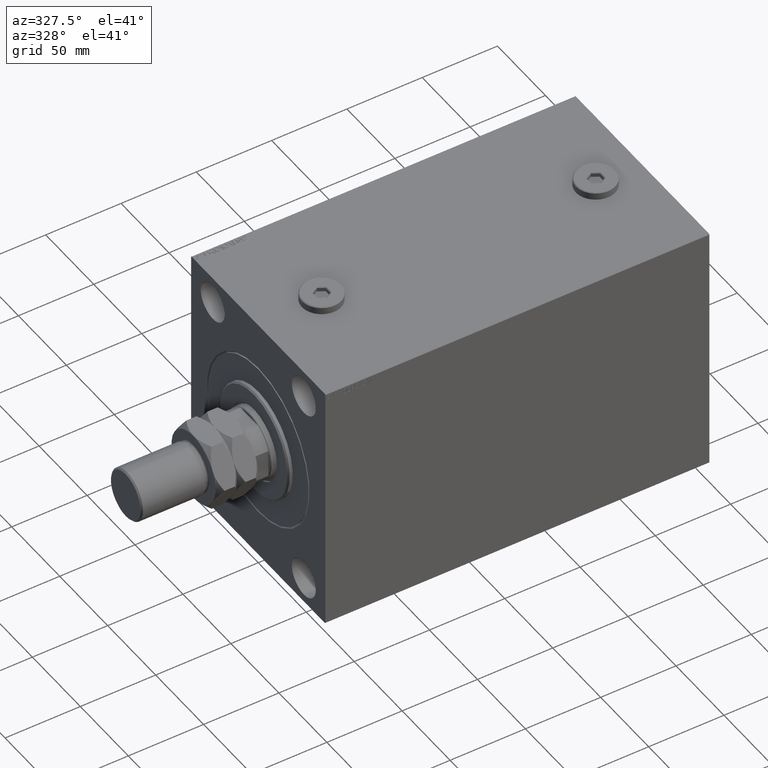
[diagram: clean part render]
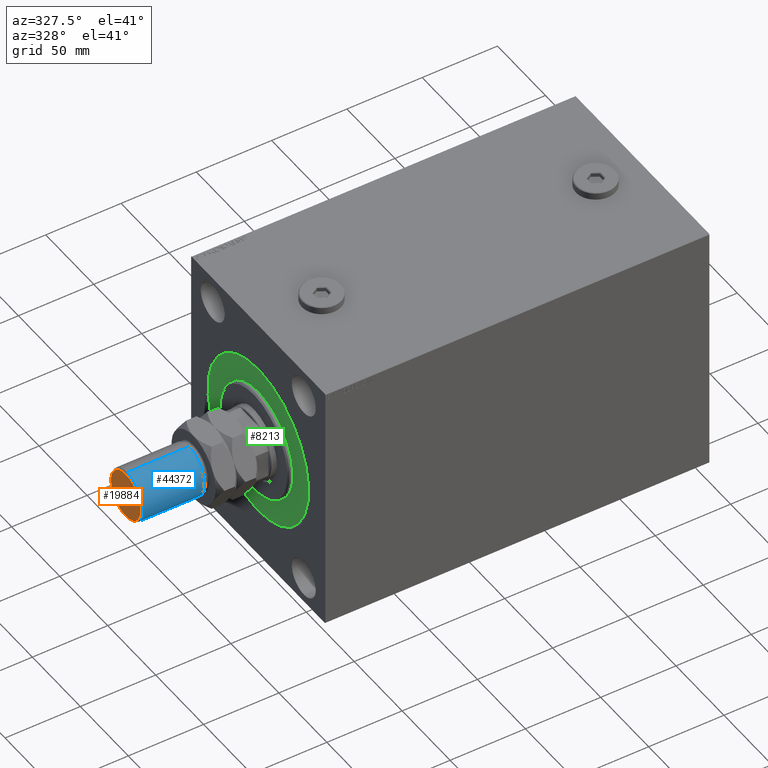
[diagram: same view with three faces highlighted in distinct colors, each labeled with its STEP entity id]
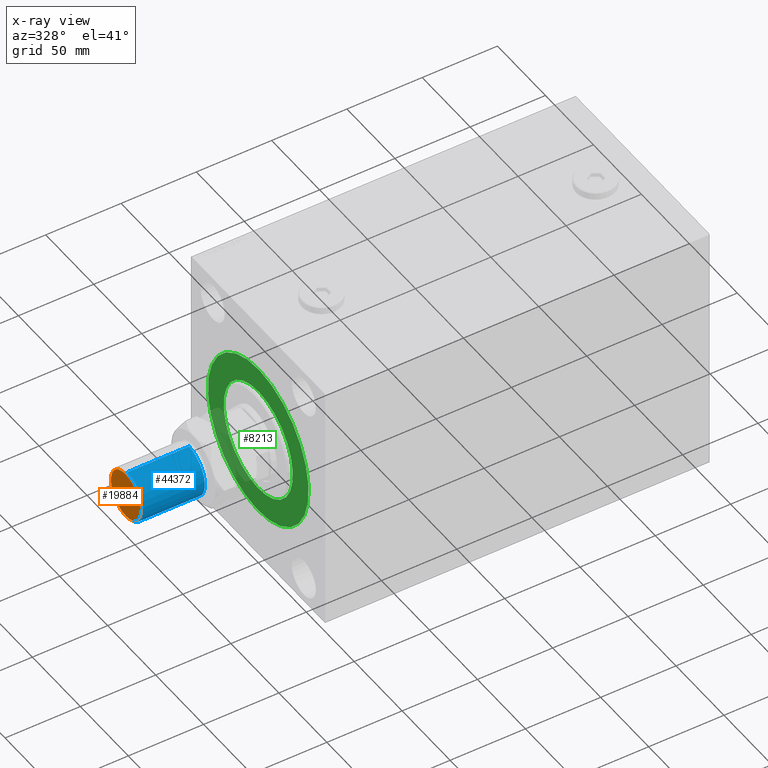
[diagram: x-ray of the same camera — body ghosted, the three highlighted faces saturated]
A machine part, auxiliary view with three faces highlighted in distinct colors.
The next image is the same camera in x-ray (body ghosted, the three faces saturated) — at least one of them is partly hidden behind the body in this view.
Their STEP definitions:

[orange] entity #19884 — the highlighted planar face has unit normal (-1, 0, 0).
#3468 = DIRECTION ( 'NONE',  ( 0.000000000000000000, 0.000000000000000000, 1.000000000000000000 ) ) ;
#3622 = VERTEX_POINT ( 'NONE', #8226 ) ;
#4128 = DIRECTION ( 'NONE',  ( 1.000000000000000000, 0.000000000000000000, 0.000000000000000000 ) ) ;
#4466 = CARTESIAN_POINT ( 'NONE',  ( -15.50000000000001421, 0.000000000000000000, 73.00000000000000000 ) ) ;
#5258 = AXIS2_PLACEMENT_3D ( 'NONE', #46260, #20835, #13702 ) ;
#5776 = ORIENTED_EDGE ( 'NONE', *, *, #31759, .T. ) ;
#6337 = FACE_OUTER_BOUND ( 'NONE', #42198, .T. ) ;
#7741 = CARTESIAN_POINT ( 'NONE',  ( 0.000000000000000000, 0.000000000000000000, 73.00000000000000000 ) ) ;
#8146 = VERTEX_POINT ( 'NONE', #4466 ) ;
#8226 = CARTESIAN_POINT ( 'NONE',  ( 15.50000000000001421, 1.959434878635766315E-15, 73.00000000000000000 ) ) ;
#8407 = CIRCLE ( 'NONE', #21336, 15.50000000000001421 ) ;
#9292 = CIRCLE ( 'NONE', #13095, 15.50000000000001421 ) ;
#13095 = AXIS2_PLACEMENT_3D ( 'NONE', #7741, #3468, #28889 ) ;
#13239 = PLANE ( 'NONE',  #5258 ) ;
#13702 = DIRECTION ( 'NONE',  ( 1.000000000000000000, 0.000000000000000000, -0.000000000000000000 ) ) ;
#19884 = ADVANCED_FACE ( 'NONE', ( #6337 ), #13239, .T. ) ;
#20835 = DIRECTION ( 'NONE',  ( 0.000000000000000000, 0.000000000000000000, 1.000000000000000000 ) ) ;
#21336 = AXIS2_PLACEMENT_3D ( 'NONE', #25973, #40467, #4128 ) ;
#22665 = ORIENTED_EDGE ( 'NONE', *, *, #28804, .T. ) ;
#25973 = CARTESIAN_POINT ( 'NONE',  ( 0.000000000000000000, 0.000000000000000000, 73.00000000000000000 ) ) ;
#28804 = EDGE_CURVE ( 'NONE', #3622, #8146, #8407, .T. ) ;
#28889 = DIRECTION ( 'NONE',  ( 1.000000000000000000, 0.000000000000000000, 0.000000000000000000 ) ) ;
#31759 = EDGE_CURVE ( 'NONE', #8146, #3622, #9292, .T. ) ;
#40467 = DIRECTION ( 'NONE',  ( 0.000000000000000000, 0.000000000000000000, 1.000000000000000000 ) ) ;
#42198 = EDGE_LOOP ( 'NONE', ( #5776, #22665 ) ) ;
#46260 = CARTESIAN_POINT ( 'NONE',  ( 0.000000000000000000, 0.000000000000000000, 73.00000000000000000 ) ) ;

[blue] entity #44372 — the highlighted cylindrical surface (edge-blend (fillet) strip) has radius 16.5 mm, axis along (1, -0, -0).
#1222 = DIRECTION ( 'NONE',  ( -0.000000000000000000, -0.000000000000000000, 1.000000000000000000 ) ) ;
#1884 = AXIS2_PLACEMENT_3D ( 'NONE', #32098, #16908, #46614 ) ;
#2459 = CARTESIAN_POINT ( 'NONE',  ( -16.50000000000000000, 0.000000000000000000, 30.99999999999998579 ) ) ;
#2487 = EDGE_CURVE ( 'NONE', #16702, #9773, #31945, .T. ) ;
#3919 = LINE ( 'NONE', #32899, #8215 ) ;
#4001 = DIRECTION ( 'NONE',  ( 0.000000000000000000, 0.000000000000000000, -1.000000000000000000 ) ) ;
#4834 = EDGE_CURVE ( 'NONE', #30489, #9773, #6968, .T. ) ;
#5643 = EDGE_CURVE ( 'NONE', #30489, #9370, #12975, .T. ) ;
#5955 = CARTESIAN_POINT ( 'NONE',  ( -16.50000000000000000, 0.000000000000000000, 72.00000000000000000 ) ) ;
#6449 = CYLINDRICAL_SURFACE ( 'NONE', #1884, 16.50000000000000000 ) ;
#6968 = LINE ( 'NONE', #43328, #39482 ) ;
#8215 = VECTOR ( 'NONE', #33593, 1000.000000000000000 ) ;
#8262 = CARTESIAN_POINT ( 'NONE',  ( 0.000000000000000000, 0.000000000000000000, 72.00000000000000000 ) ) ;
#9370 = VERTEX_POINT ( 'NONE', #5955 ) ;
#9773 = VERTEX_POINT ( 'NONE', #34784 ) ;
#12524 = ORIENTED_EDGE ( 'NONE', *, *, #4834, .F. ) ;
#12975 = CIRCLE ( 'NONE', #38775, 16.50000000000000000 ) ;
#14913 = CARTESIAN_POINT ( 'NONE',  ( 16.50000000000000000, 2.020667218593133100E-15, 72.00000000000000000 ) ) ;
#16693 = EDGE_CURVE ( 'NONE', #9370, #16702, #3919, .T. ) ;
#16702 = VERTEX_POINT ( 'NONE', #2459 ) ;
#16908 = DIRECTION ( 'NONE',  ( -0.000000000000000000, -0.000000000000000000, -1.000000000000000000 ) ) ;
#21556 = EDGE_LOOP ( 'NONE', ( #12524, #38010, #29271, #36404 ) ) ;
#22860 = AXIS2_PLACEMENT_3D ( 'NONE', #41132, #1222, #30207 ) ;
#23803 = FACE_OUTER_BOUND ( 'NONE', #21556, .T. ) ;
#29271 = ORIENTED_EDGE ( 'NONE', *, *, #16693, .T. ) ;
#30207 = DIRECTION ( 'NONE',  ( 1.000000000000000000, 0.000000000000000000, 0.000000000000000000 ) ) ;
#30489 = VERTEX_POINT ( 'NONE', #14913 ) ;
#31680 = DIRECTION ( 'NONE',  ( -0.000000000000000000, -0.000000000000000000, -1.000000000000000000 ) ) ;
#31945 = CIRCLE ( 'NONE', #22860, 16.50000000000000000 ) ;
#32098 = CARTESIAN_POINT ( 'NONE',  ( 0.000000000000000000, 0.000000000000000000, 73.00000000000000000 ) ) ;
#32899 = CARTESIAN_POINT ( 'NONE',  ( -16.50000000000000000, 0.000000000000000000, 73.00000000000000000 ) ) ;
#33593 = DIRECTION ( 'NONE',  ( -0.000000000000000000, -0.000000000000000000, -1.000000000000000000 ) ) ;
#34784 = CARTESIAN_POINT ( 'NONE',  ( 16.50000000000000000, 2.020667218593133100E-15, 30.99999999999998579 ) ) ;
#36404 = ORIENTED_EDGE ( 'NONE', *, *, #2487, .T. ) ;
#38010 = ORIENTED_EDGE ( 'NONE', *, *, #5643, .T. ) ;
#38775 = AXIS2_PLACEMENT_3D ( 'NONE', #8262, #4001, #41279 ) ;
#39482 = VECTOR ( 'NONE', #31680, 1000.000000000000000 ) ;
#41132 = CARTESIAN_POINT ( 'NONE',  ( 0.000000000000000000, 0.000000000000000000, 30.99999999999998579 ) ) ;
#41279 = DIRECTION ( 'NONE',  ( 1.000000000000000000, 0.000000000000000000, 0.000000000000000000 ) ) ;
#43328 = CARTESIAN_POINT ( 'NONE',  ( 16.50000000000000000, 2.020667218593133100E-15, 73.00000000000000000 ) ) ;
#44372 = ADVANCED_FACE ( 'NONE', ( #23803 ), #6449, .T. ) ;
#46614 = DIRECTION ( 'NONE',  ( -1.000000000000000000, 0.000000000000000000, 0.000000000000000000 ) ) ;

[green] entity #8213 — the highlighted planar face has unit normal (1, 0, -0).
#681 = EDGE_CURVE ( 'NONE', #14519, #46500, #28872, .T. ) ;
#1124 = PLANE ( 'NONE',  #33783 ) ;
#1612 = FACE_OUTER_BOUND ( 'NONE', #16157, .T. ) ;
#2905 = CARTESIAN_POINT ( 'NONE',  ( 0.000000000000000000, 0.000000000000000000, 36.00000000000000000 ) ) ;
#3500 = CIRCLE ( 'NONE', #42208, 36.00000000000000000 ) ;
#3738 = DIRECTION ( 'NONE',  ( -1.000000000000000000, 0.000000000000000000, 0.000000000000000000 ) ) ;
#3973 = DIRECTION ( 'NONE',  ( 0.000000000000000000, 0.000000000000000000, 1.000000000000000000 ) ) ;
#6206 = AXIS2_PLACEMENT_3D ( 'NONE', #32202, #39566, #6786 ) ;
#6786 = DIRECTION ( 'NONE',  ( 0.000000000000000000, 0.000000000000000000, 1.000000000000000000 ) ) ;
#8213 = ADVANCED_FACE ( 'NONE', ( #19668, #1612 ), #1124, .F. ) ;
#10677 = ORIENTED_EDGE ( 'NONE', *, *, #681, .F. ) ;
#10710 = CARTESIAN_POINT ( 'NONE',  ( 0.000000000000000000, 0.000000000000000000, 0.000000000000000000 ) ) ;
#11188 = EDGE_CURVE ( 'NONE', #46500, #14519, #3500, .T. ) ;
#13360 = CARTESIAN_POINT ( 'NONE',  ( 0.000000000000000000, 0.000000000000000000, 0.000000000000000000 ) ) ;
#14519 = VERTEX_POINT ( 'NONE', #29751 ) ;
#16157 = EDGE_LOOP ( 'NONE', ( #47036, #18285 ) ) ;
#17511 = AXIS2_PLACEMENT_3D ( 'NONE', #43889, #3738, #3973 ) ;
#18285 = ORIENTED_EDGE ( 'NONE', *, *, #30760, .F. ) ;
#18472 = VERTEX_POINT ( 'NONE', #37560 ) ;
#19026 = CIRCLE ( 'NONE', #17511, 52.49999999999999289 ) ;
#19668 = FACE_BOUND ( 'NONE', #45895, .T. ) ;
#19911 = CARTESIAN_POINT ( 'NONE',  ( 0.000000000000000000, 0.000000000000000000, 0.000000000000000000 ) ) ;
#20085 = CARTESIAN_POINT ( 'NONE',  ( 0.000000000000000000, 6.429395695523603167E-15, 52.49999999999999289 ) ) ;
#23352 = DIRECTION ( 'NONE',  ( 0.000000000000000000, 0.000000000000000000, -1.000000000000000000 ) ) ;
#23463 = DIRECTION ( 'NONE',  ( 0.000000000000000000, 0.000000000000000000, 1.000000000000000000 ) ) ;
#25935 = CIRCLE ( 'NONE', #6206, 52.49999999999999289 ) ;
#26560 = EDGE_CURVE ( 'NONE', #18472, #27976, #19026, .T. ) ;
#27976 = VERTEX_POINT ( 'NONE', #20085 ) ;
#28508 = ORIENTED_EDGE ( 'NONE', *, *, #11188, .F. ) ;
#28533 = DIRECTION ( 'NONE',  ( 1.000000000000000000, -0.000000000000000000, 0.000000000000000000 ) ) ;
#28872 = CIRCLE ( 'NONE', #36463, 36.00000000000000000 ) ;
#29751 = CARTESIAN_POINT ( 'NONE',  ( 0.000000000000000000, 4.408728476930470856E-15, -36.00000000000000000 ) ) ;
#30760 = EDGE_CURVE ( 'NONE', #27976, #18472, #25935, .T. ) ;
#32202 = CARTESIAN_POINT ( 'NONE',  ( 0.000000000000000000, 0.000000000000000000, 0.000000000000000000 ) ) ;
#33783 = AXIS2_PLACEMENT_3D ( 'NONE', #19911, #34396, #23463 ) ;
#34396 = DIRECTION ( 'NONE',  ( -1.000000000000000000, 0.000000000000000000, 0.000000000000000000 ) ) ;
#36463 = AXIS2_PLACEMENT_3D ( 'NONE', #13360, #41873, #23352 ) ;
#37560 = CARTESIAN_POINT ( 'NONE',  ( 0.000000000000000000, 0.000000000000000000, -52.49999999999999289 ) ) ;
#39566 = DIRECTION ( 'NONE',  ( -1.000000000000000000, 0.000000000000000000, 0.000000000000000000 ) ) ;
#41873 = DIRECTION ( 'NONE',  ( 1.000000000000000000, -0.000000000000000000, 0.000000000000000000 ) ) ;
#42208 = AXIS2_PLACEMENT_3D ( 'NONE', #10710, #28533, #46606 ) ;
#43889 = CARTESIAN_POINT ( 'NONE',  ( 0.000000000000000000, 0.000000000000000000, 0.000000000000000000 ) ) ;
#45895 = EDGE_LOOP ( 'NONE', ( #28508, #10677 ) ) ;
#46500 = VERTEX_POINT ( 'NONE', #2905 ) ;
#46606 = DIRECTION ( 'NONE',  ( 0.000000000000000000, 0.000000000000000000, -1.000000000000000000 ) ) ;
#47036 = ORIENTED_EDGE ( 'NONE', *, *, #26560, .F. ) ;